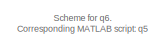
[diagram: root canvas - part 1/4, top left region]
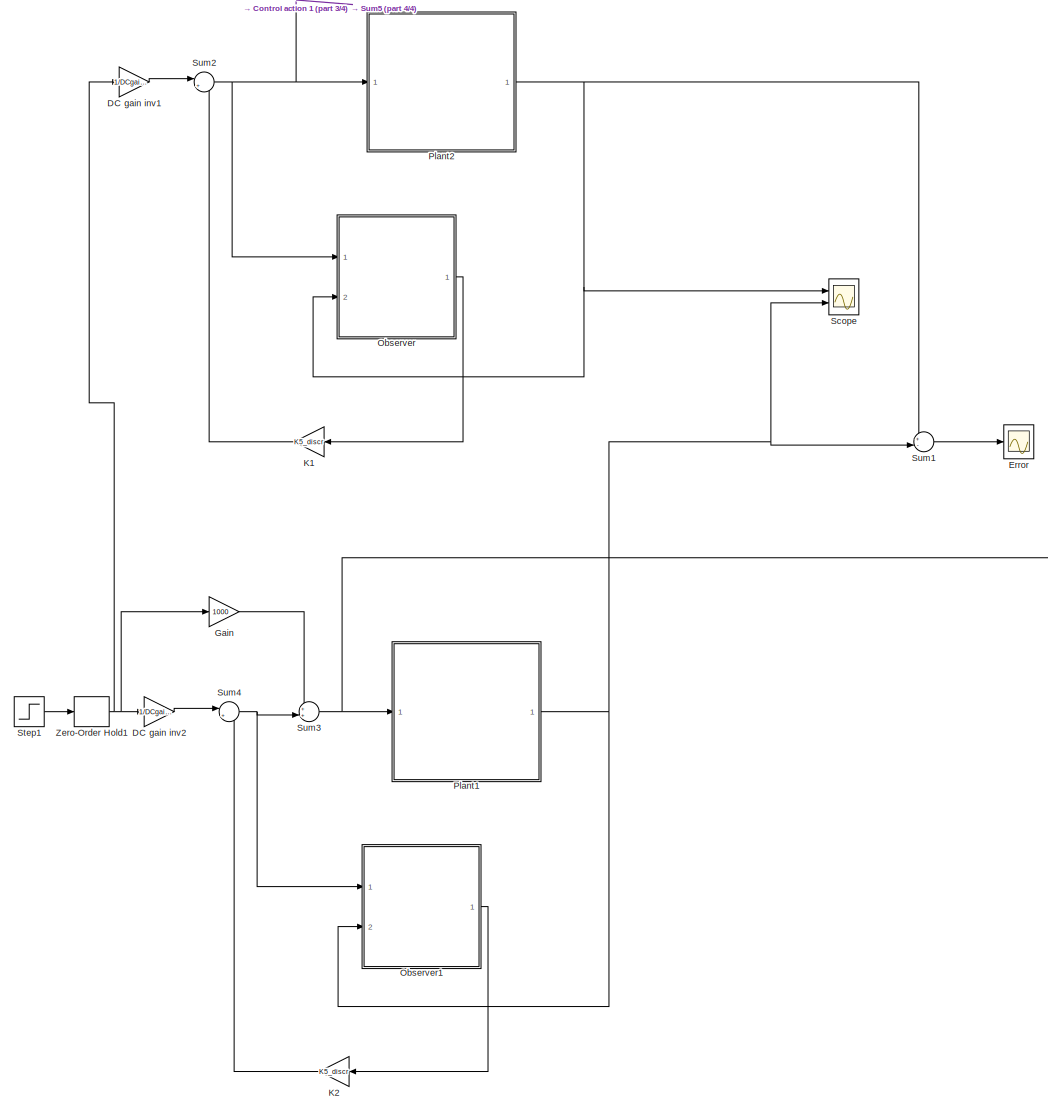
[diagram: root canvas - part 2/4, center side, full height]
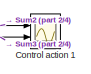
[diagram: root canvas - part 3/4, middle right region]
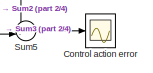
[diagram: root canvas - part 4/4, middle right region]
MODEL slx_e433ebd419e1
KIND model
CONFIG AbsTol = auto
CONFIG EnableMultiTasking = off
CONFIG FixedStep = auto
CONFIG MaxStep = auto
CONFIG MinStep = auto
CONFIG RelTol = 1e-3
CONFIG SampleTimeConstraint = Unconstrained
CONFIG Solver = VariableStepAuto
CONFIG SolverName = VariableStepAuto
CONFIG StartTime = 0.0
CONFIG StopTime = 0.5
BLOCK [Scope] Control action 1
  NumInputPorts = 2
  Ports = [2]
  ScopeSpecificationString = Simulink.scopes.TimeScopeBlockCfg('CurrentConfiguration', extmgr.ConfigurationSet(extmgr.Configuration('Core','General UI',true),extmgr.Configuration('Core','Source UI',true),extmgr.Configuration('Sources','WiredSimulink',true,'DataLoggingVariableName','ScopeData1'),extmgr.Configuration('Visuals','Time Domain',true,'SerializedDisplays',{struct('MinYLimReal','-638249.35022','MaxYLimReal','214791.83...<+1632ch>
BLOCK [Scope] Control action error
  NumInputPorts = 1
  Ports = [1]
  ScopeSpecificationString = Simulink.scopes.TimeScopeBlockCfg('CurrentConfiguration', extmgr.ConfigurationSet(extmgr.Configuration('Core','General UI',true),extmgr.Configuration('Core','Source UI',true),extmgr.Configuration('Sources','WiredSimulink',true,'DataLoggingVariableName','ScopeData5'),extmgr.Configuration('Visuals','Time Domain',true,'SerializedDisplays',{struct('MinYLimReal','-1209.72249','MaxYLimReal','887.50241',...<+1476ch>
BLOCK [Gain] DC gain inv1
  Gain = 1/DCgain5
  Multiplication = Matrix(K*u)
  OutDataTypeStr = Inherit: Inherit via internal rule
  ParamDataTypeStr = Inherit: Inherit via internal rule
  SaturateOnIntegerOverflow = off
BLOCK [Gain] DC gain inv2
  Gain = 1/DCgain5
  Multiplication = Matrix(K*u)
  OutDataTypeStr = Inherit: Inherit via internal rule
  ParamDataTypeStr = Inherit: Inherit via internal rule
  SaturateOnIntegerOverflow = off
BLOCK [Scope] Error
  NumInputPorts = 1
  Ports = [1]
  ScopeSpecificationString = Simulink.scopes.TimeScopeBlockCfg('CurrentConfiguration', extmgr.ConfigurationSet(extmgr.Configuration('Core','General UI',true),extmgr.Configuration('Core','Source UI',true),extmgr.Configuration('Sources','WiredSimulink',true,'DataLoggingVariableName','ScopeData2'),extmgr.Configuration('Visuals','Time Domain',true,'SerializedDisplays',{struct('MinYLimReal','-0.51908','MaxYLimReal','0.25254','YLab...<+1440ch>
BLOCK [Gain] Gain
  Gain = 1000
  OutDataTypeStr = Inherit: Inherit via internal rule
  ParamDataTypeStr = Inherit: Inherit via internal rule
  SaturateOnIntegerOverflow = off
BLOCK [Gain] K1
  Gain = K5_discr
  Multiplication = Matrix(K*u)
  OutDataTypeStr = Inherit: Inherit via internal rule
  ParamDataTypeStr = Inherit: Inherit via internal rule
  SaturateOnIntegerOverflow = off
BLOCK [Gain] K2
  Gain = K5_discr
  Multiplication = Matrix(K*u)
  OutDataTypeStr = Inherit: Inherit via internal rule
  ParamDataTypeStr = Inherit: Inherit via internal rule
  SaturateOnIntegerOverflow = off
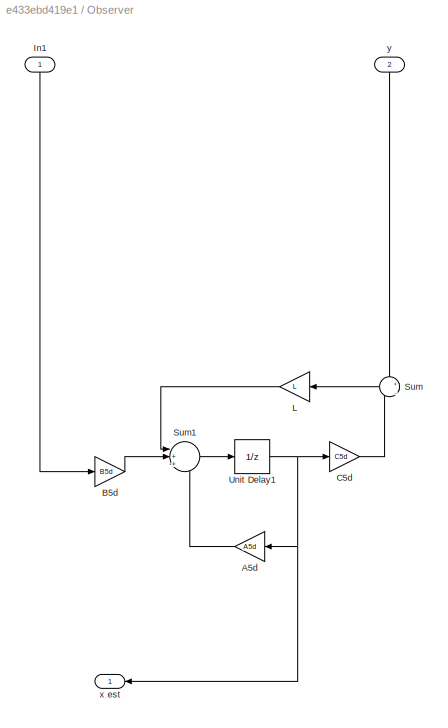
BLOCK [SubSystem] Observer
  Ports = [2, 1]
  RequestExecContextInheritance = off
  Variant = off
BLOCK [Gain] Observer/A5d
  Gain = A5d
  Multiplication = Matrix(K*u)
  OutDataTypeStr = Inherit: Inherit via internal rule
  ParamDataTypeStr = Inherit: Inherit via internal rule
  SaturateOnIntegerOverflow = off
BLOCK [Gain] Observer/B5d
  Gain = B5d
  Multiplication = Matrix(K*u)
  OutDataTypeStr = Inherit: Inherit via internal rule
  ParamDataTypeStr = Inherit: Inherit via internal rule
  SaturateOnIntegerOverflow = off
BLOCK [Gain] Observer/C5d
  Gain = C5d
  Multiplication = Matrix(K*u)
  OutDataTypeStr = Inherit: Inherit via internal rule
  ParamDataTypeStr = Inherit: Inherit via internal rule
  SaturateOnIntegerOverflow = off
BLOCK [Inport] Observer/In1
  IconDisplay = Port number
BLOCK [Gain] Observer/L
  Gain = L
  OutDataTypeStr = Inherit: Inherit via internal rule
  ParamDataTypeStr = Inherit: Inherit via internal rule
  SaturateOnIntegerOverflow = off
BLOCK [Sum] Observer/Sum
  IconShape = round
  InputSameDT = off
  Inputs = +||-
  OutDataTypeStr = Inherit: Inherit via internal rule
  Ports = [2, 1]
  SaturateOnIntegerOverflow = off
BLOCK [Sum] Observer/Sum1
  IconShape = round
  InputSameDT = off
  Inputs = |+++
  OutDataTypeStr = Inherit: Inherit via internal rule
  Ports = [3, 1]
  SaturateOnIntegerOverflow = off
BLOCK [UnitDelay] Observer/Unit Delay1
  InitialCondition = x0_obs
  InputProcessing = Elements as channels (sample based)
  SampleTime = -1
BLOCK [Outport] Observer/x est
  IconDisplay = Port number
BLOCK [Inport] Observer/y
  IconDisplay = Port number
  Port = 2
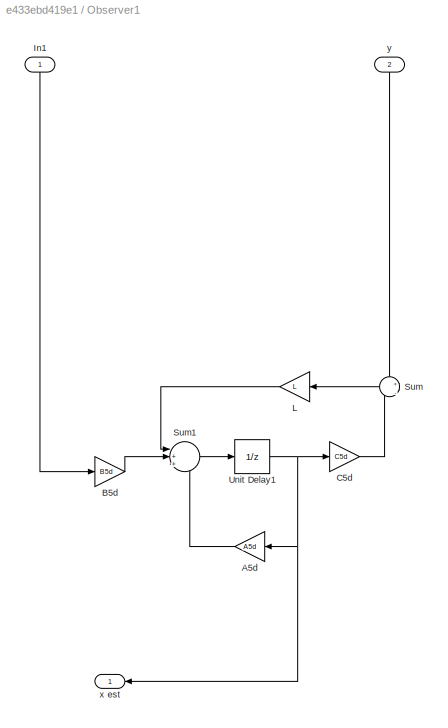
BLOCK [SubSystem] Observer1
  Ports = [2, 1]
  RequestExecContextInheritance = off
  Variant = off
BLOCK [Gain] Observer1/A5d
  Gain = A5d
  Multiplication = Matrix(K*u)
  OutDataTypeStr = Inherit: Inherit via internal rule
  ParamDataTypeStr = Inherit: Inherit via internal rule
  SaturateOnIntegerOverflow = off
BLOCK [Gain] Observer1/B5d
  Gain = B5d
  Multiplication = Matrix(K*u)
  OutDataTypeStr = Inherit: Inherit via internal rule
  ParamDataTypeStr = Inherit: Inherit via internal rule
  SaturateOnIntegerOverflow = off
BLOCK [Gain] Observer1/C5d
  Gain = C5d
  Multiplication = Matrix(K*u)
  OutDataTypeStr = Inherit: Inherit via internal rule
  ParamDataTypeStr = Inherit: Inherit via internal rule
  SaturateOnIntegerOverflow = off
BLOCK [Inport] Observer1/In1
  IconDisplay = Port number
BLOCK [Gain] Observer1/L
  Gain = L
  OutDataTypeStr = Inherit: Inherit via internal rule
  ParamDataTypeStr = Inherit: Inherit via internal rule
  SaturateOnIntegerOverflow = off
BLOCK [Sum] Observer1/Sum
  IconShape = round
  InputSameDT = off
  Inputs = +||-
  OutDataTypeStr = Inherit: Inherit via internal rule
  Ports = [2, 1]
  SaturateOnIntegerOverflow = off
BLOCK [Sum] Observer1/Sum1
  IconShape = round
  InputSameDT = off
  Inputs = |+++
  OutDataTypeStr = Inherit: Inherit via internal rule
  Ports = [3, 1]
  SaturateOnIntegerOverflow = off
BLOCK [UnitDelay] Observer1/Unit Delay1
  InitialCondition = x0_obs
  InputProcessing = Elements as channels (sample based)
  SampleTime = -1
BLOCK [Outport] Observer1/x est
  IconDisplay = Port number
BLOCK [Inport] Observer1/y
  IconDisplay = Port number
  Port = 2
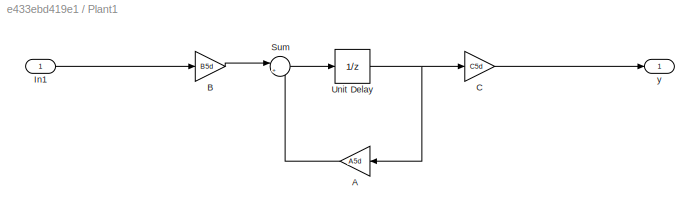
BLOCK [SubSystem] Plant1
  Ports = [1, 1]
  RequestExecContextInheritance = off
  Variant = off
BLOCK [Gain] Plant1/A
  Gain = A5d
  Multiplication = Matrix(K*u)
  OutDataTypeStr = Inherit: Inherit via internal rule
  ParamDataTypeStr = Inherit: Inherit via internal rule
  SaturateOnIntegerOverflow = off
BLOCK [Gain] Plant1/B
  Gain = B5d
  Multiplication = Matrix(K*u)
  OutDataTypeStr = Inherit: Inherit via internal rule
  ParamDataTypeStr = Inherit: Inherit via internal rule
  SaturateOnIntegerOverflow = off
BLOCK [Gain] Plant1/C
  Gain = C5d
  Multiplication = Matrix(K*u)
  OutDataTypeStr = Inherit: Inherit via internal rule
  ParamDataTypeStr = Inherit: Inherit via internal rule
  SaturateOnIntegerOverflow = off
BLOCK [Inport] Plant1/In1
  IconDisplay = Port number
BLOCK [Sum] Plant1/Sum
  IconShape = round
  InputSameDT = off
  Inputs = |++
  OutDataTypeStr = Inherit: Inherit via internal rule
  Ports = [2, 1]
  SaturateOnIntegerOverflow = off
BLOCK [UnitDelay] Plant1/Unit Delay
  InitialCondition = x0_plant
  InputProcessing = Elements as channels (sample based)
  SampleTime = -1
BLOCK [Outport] Plant1/y
  IconDisplay = Port number
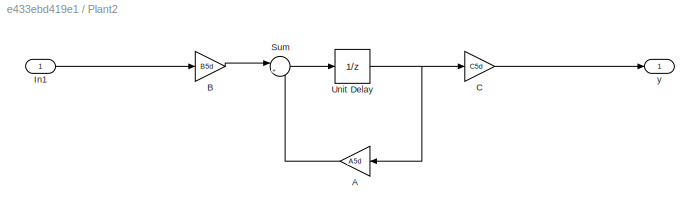
BLOCK [SubSystem] Plant2
  Ports = [1, 1]
  RequestExecContextInheritance = off
  Variant = off
BLOCK [Gain] Plant2/A
  Gain = A5d
  Multiplication = Matrix(K*u)
  OutDataTypeStr = Inherit: Inherit via internal rule
  ParamDataTypeStr = Inherit: Inherit via internal rule
  SaturateOnIntegerOverflow = off
BLOCK [Gain] Plant2/B
  Gain = B5d
  Multiplication = Matrix(K*u)
  OutDataTypeStr = Inherit: Inherit via internal rule
  ParamDataTypeStr = Inherit: Inherit via internal rule
  SaturateOnIntegerOverflow = off
BLOCK [Gain] Plant2/C
  Gain = C5d
  Multiplication = Matrix(K*u)
  OutDataTypeStr = Inherit: Inherit via internal rule
  ParamDataTypeStr = Inherit: Inherit via internal rule
  SaturateOnIntegerOverflow = off
BLOCK [Inport] Plant2/In1
  IconDisplay = Port number
BLOCK [Sum] Plant2/Sum
  IconShape = round
  InputSameDT = off
  Inputs = |++
  OutDataTypeStr = Inherit: Inherit via internal rule
  Ports = [2, 1]
  SaturateOnIntegerOverflow = off
BLOCK [UnitDelay] Plant2/Unit Delay
  InitialCondition = x0_plant
  InputProcessing = Elements as channels (sample based)
  SampleTime = -1
BLOCK [Outport] Plant2/y
  IconDisplay = Port number
BLOCK [Scope] Scope
  NumInputPorts = 2
  Ports = [2]
  ScopeSpecificationString = Simulink.scopes.TimeScopeBlockCfg('CurrentConfiguration', extmgr.ConfigurationSet(extmgr.Configuration('Core','General UI',true,'FigureColor',[1 1 1]),extmgr.Configuration('Core','Source UI',true),extmgr.Configuration('Sources','WiredSimulink',true),extmgr.Configuration('Visuals','Time Domain',true,'SerializedDisplays',{struct('MinYLimReal','-9.4162','MaxYLimReal','9.57793','YLabelReal','','MinYLi...<+1980ch>
BLOCK [Step] Step1
  SampleTime = 0
  Time = 0
BLOCK [Sum] Sum1
  IconShape = round
  InputSameDT = off
  Inputs = +-|
  OutDataTypeStr = Inherit: Inherit via internal rule
  Ports = [2, 1]
  SaturateOnIntegerOverflow = off
BLOCK [Sum] Sum2
  IconShape = round
  InputSameDT = off
  Inputs = |+-
  OutDataTypeStr = Inherit: Inherit via internal rule
  Ports = [2, 1]
  SaturateOnIntegerOverflow = off
BLOCK [Sum] Sum3
  IconShape = round
  InputSameDT = off
  Inputs = ++|
  OutDataTypeStr = Inherit: Inherit via internal rule
  Ports = [2, 1]
  SaturateOnIntegerOverflow = off
BLOCK [Sum] Sum4
  IconShape = round
  InputSameDT = off
  Inputs = |+-
  OutDataTypeStr = Inherit: Inherit via internal rule
  Ports = [2, 1]
  SaturateOnIntegerOverflow = off
BLOCK [Sum] Sum5
  IconShape = round
  InputSameDT = off
  Inputs = +-|
  OutDataTypeStr = Inherit: Inherit via internal rule
  Ports = [2, 1]
  SaturateOnIntegerOverflow = off
BLOCK [ZeroOrderHold] Zero-Order Hold1
  SampleTime = h5
ANNOTATION (root): Scheme for q6. Corresponding MATLAB script: q5
LINE DC gain inv1:1 -> Sum2:1
LINE DC gain inv2:1 -> Sum4:1
LINE Gain:1 -> Sum3:1
LINE K1:1 -> Sum2:2
LINE K2:1 -> Sum4:2
LINE Observer/A5d:1 -> Observer/Sum1:3
LINE Observer/B5d:1 -> Observer/Sum1:2
LINE Observer/C5d:1 -> Observer/Sum:2
LINE Observer/In1:1 -> Observer/B5d:1
LINE Observer/L:1 -> Observer/Sum1:1
LINE Observer/Sum1:1 -> Observer/Unit Delay1:1
LINE Observer/Sum:1 -> Observer/L:1
NET Observer/Unit Delay1:1 -> Observer/A5d:1, Observer/C5d:1, Observer/x est:1
LINE Observer/y:1 -> Observer/Sum:1
LINE Observer1/A5d:1 -> Observer1/Sum1:3
LINE Observer1/B5d:1 -> Observer1/Sum1:2
LINE Observer1/C5d:1 -> Observer1/Sum:2
LINE Observer1/In1:1 -> Observer1/B5d:1
LINE Observer1/L:1 -> Observer1/Sum1:1
LINE Observer1/Sum1:1 -> Observer1/Unit Delay1:1
LINE Observer1/Sum:1 -> Observer1/L:1
NET Observer1/Unit Delay1:1 -> Observer1/A5d:1, Observer1/C5d:1, Observer1/x est:1
LINE Observer1/y:1 -> Observer1/Sum:1
LINE Observer1:1 -> K2:1
LINE Observer:1 -> K1:1
LINE Plant1/A:1 -> Plant1/Sum:2
LINE Plant1/B:1 -> Plant1/Sum:1
LINE Plant1/C:1 -> Plant1/y:1
LINE Plant1/In1:1 -> Plant1/B:1
LINE Plant1/Sum:1 -> Plant1/Unit Delay:1
NET Plant1/Unit Delay:1 -> Plant1/A:1, Plant1/C:1
NET Plant1:1 -> Observer1:2, Scope:2, Sum1:2
LINE Plant2/A:1 -> Plant2/Sum:2
LINE Plant2/B:1 -> Plant2/Sum:1
LINE Plant2/C:1 -> Plant2/y:1
LINE Plant2/In1:1 -> Plant2/B:1
LINE Plant2/Sum:1 -> Plant2/Unit Delay:1
NET Plant2/Unit Delay:1 -> Plant2/A:1, Plant2/C:1
NET Plant2:1 -> Observer:2, Scope:1, Sum1:1
LINE Step1:1 -> Zero-Order Hold1:1
LINE Sum1:1 -> Error:1
NET Sum2:1 -> Control action 1:1, Observer:1, Plant2:1, Sum5:1
NET Sum3:1 -> Control action 1:2, Plant1:1, Sum5:2
NET Sum4:1 -> Observer1:1, Sum3:2
LINE Sum5:1 -> Control action error:1
NET Zero-Order Hold1:1 -> DC gain inv1:1, DC gain inv2:1, Gain:1
note: NET lines group one-source signal fan-out (src -> all destinations, sorted); 1:1 wires keep LINE
